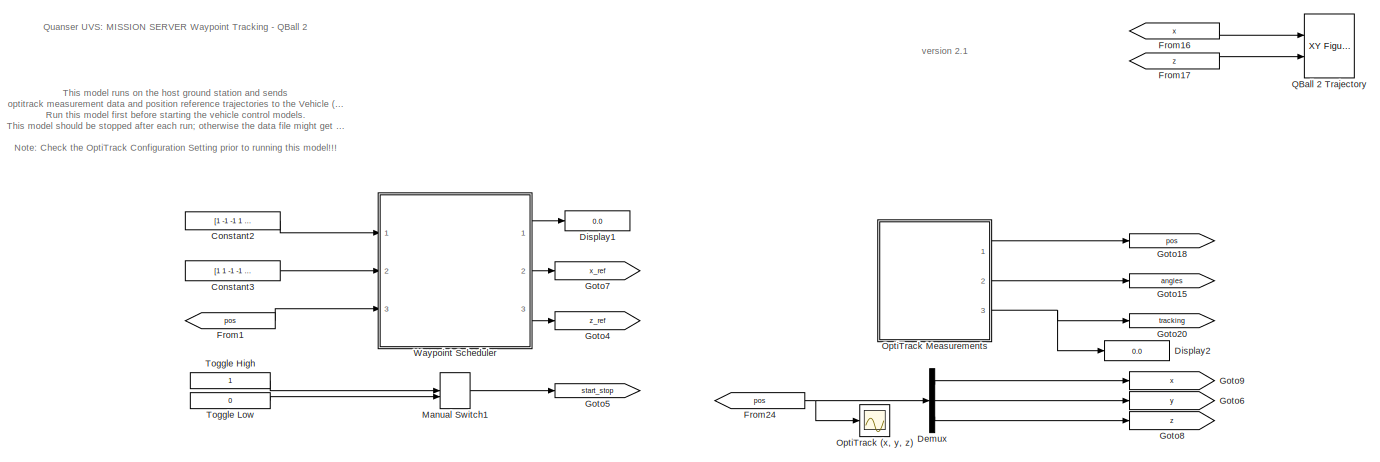
[diagram: root canvas - part 1/2, full width, top band]
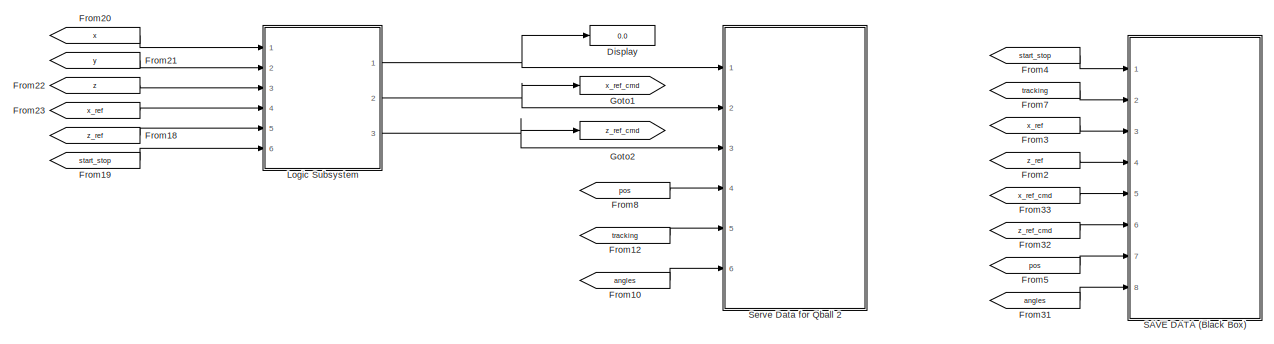
[diagram: root canvas - part 2/2, full width, bottom band]
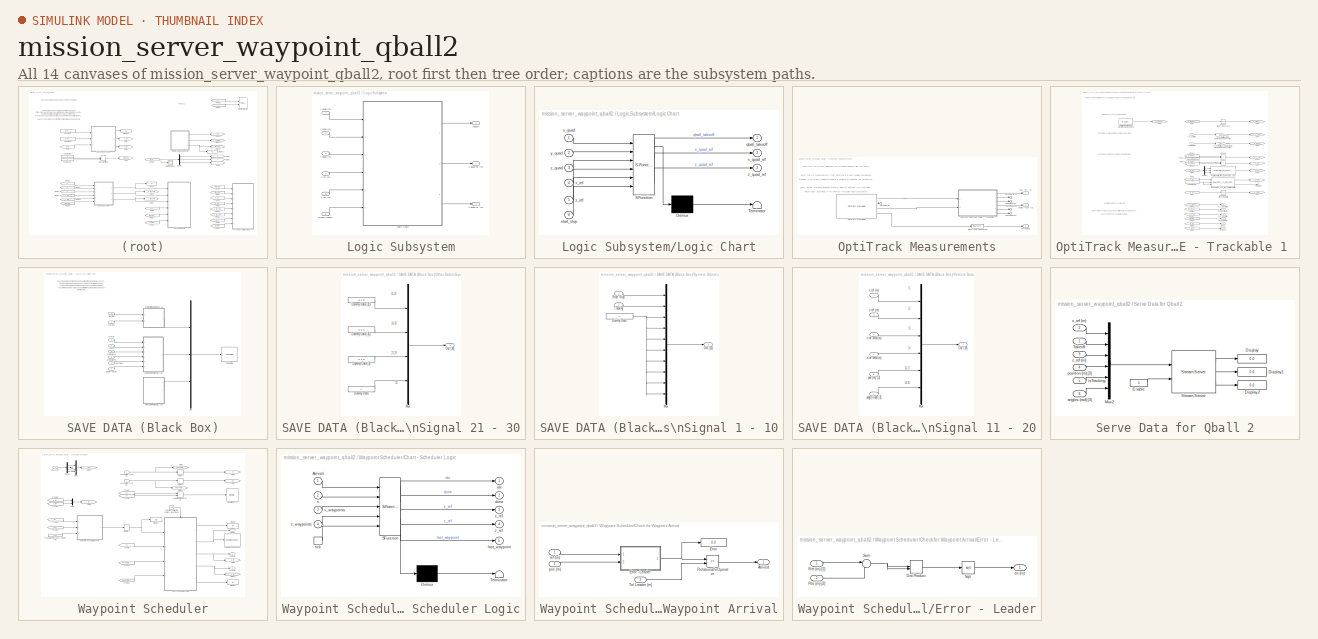
[diagram: thumbnail index - all 14 canvases of the model, root first then tree order]
MODEL mission_server_waypoint_qball2
KIND model
BLOCK [Constant] Constant2
  SID = 164
  Value = [1 -1 -1 1 0]*0.5
BLOCK [Constant] Constant3
  SID = 165
  Value = [1 1 -1 -1 0]*0.5
BLOCK [Demux] Demux
  DisplayOption = bar
  Outputs = 3
  Ports = [1, 3]
  SID = 210
BLOCK [Display] Display
  Decimation = 1
  Ports = [1]
  SID = 188
BLOCK [Display] Display1
  Decimation = 1
  Ports = [1]
  SID = 540
BLOCK [Display] Display2
  Decimation = 1
  Ports = [1]
  SID = 637
BLOCK [From] From1
  GotoTag = pos
  SID = 168
BLOCK [From] From10
  GotoTag = angles
  SID = 338
BLOCK [From] From12
  GotoTag = tracking
  SID = 151
BLOCK [From] From16
  GotoTag = x
  SID = 177
BLOCK [From] From17
  GotoTag = z
  SID = 178
BLOCK [From] From18
  GotoTag = z_ref
  SID = 122
BLOCK [From] From19
  GotoTag = start_stop
  SID = 129
BLOCK [From] From2
  GotoTag = z_ref
  SID = 569
BLOCK [From] From20
  GotoTag = x
  SID = 137
BLOCK [From] From21
  GotoTag = y
  SID = 138
BLOCK [From] From22
  GotoTag = z
  SID = 139
BLOCK [From] From23
  GotoTag = x_ref
  SID = 121
BLOCK [From] From24
  GotoTag = pos
  SID = 281
BLOCK [From] From3
  GotoTag = x_ref
  SID = 570
BLOCK [From] From31
  GotoTag = angles
  SID = 582
BLOCK [From] From32
  GotoTag = z_ref_cmd
  SID = 630
BLOCK [From] From33
  GotoTag = x_ref_cmd
  SID = 631
BLOCK [From] From4
  GotoTag = start_stop
  SID = 572
BLOCK [From] From5
  GotoTag = pos
  SID = 573
BLOCK [From] From7
  GotoTag = tracking
  SID = 575
BLOCK [From] From8
  GotoTag = pos
  SID = 337
BLOCK [Goto] Goto1
  GotoTag = x_ref_cmd
  SID = 622
BLOCK [Goto] Goto15
  GotoTag = angles
  SID = 275
BLOCK [Goto] Goto18
  GotoTag = pos
  SID = 278
BLOCK [Goto] Goto2
  GotoTag = z_ref_cmd
  SID = 623
BLOCK [Goto] Goto20
  GotoTag = tracking
  SID = 280
BLOCK [Goto] Goto4
  GotoTag = z_ref
  SID = 107
BLOCK [Goto] Goto5
  GotoTag = start_stop
  SID = 232
BLOCK [Goto] Goto6
  GotoTag = y
  SID = 217
BLOCK [Goto] Goto7
  GotoTag = x_ref
  SID = 106
BLOCK [Goto] Goto8
  GotoTag = z
  SID = 218
BLOCK [Goto] Goto9
  GotoTag = x
  SID = 219
BLOCK [SubSystem] Logic Subsystem
  Ports = [6, 3]
  RequestExecContextInheritance = off
  SID = 112
BLOCK [Inport] Logic Subsystem/Enable Toggle
  IconDisplay = Port number
  Port = 6
  SID = 247
BLOCK [SubSystem] Logic Subsystem/Logic Chart
  ErrorFcn = Stateflow.Translate.translate
  PermitHierarchicalResolution = ExplicitOnly
  Ports = [6, 3]
  RequestExecContextInheritance = off
  SFBlockType = Chart
  SID = 115
  TreatAsAtomicUnit = on
BLOCK [Demux] Logic Subsystem/Logic Chart/ Demux 
  Outputs = 1
  Ports = [1, 1]
  SID = 115::638
BLOCK [S-Function] Logic Subsystem/Logic Chart/ SFunction 
  EnableBusSupport = on
  FunctionName = sf_sfun
  PortCounts = [6 4]
  Ports = [6, 4]
  SID = 115::637
  Tag = Stateflow S-Function mission_server_waypoint_qball2 1
BLOCK [Terminator] Logic Subsystem/Logic Chart/ Terminator 
  SID = 115::639
BLOCK [Outport] Logic Subsystem/Logic Chart/qball_takeoff
  IconDisplay = Port number
  SID = 115::25
BLOCK [Inport] Logic Subsystem/Logic Chart/start_stop
  IconDisplay = Port number
  Port = 6
  SID = 115::38
BLOCK [Inport] Logic Subsystem/Logic Chart/x_quad
  IconDisplay = Port number
  SID = 115::26
BLOCK [Outport] Logic Subsystem/Logic Chart/x_quad_ref
  IconDisplay = Port number
  Port = 2
  SID = 115::33
BLOCK [Inport] Logic Subsystem/Logic Chart/x_ref
  IconDisplay = Port number
  Port = 4
  SID = 115::31
BLOCK [Inport] Logic Subsystem/Logic Chart/y_quad
  IconDisplay = Port number
  Port = 2
  SID = 115::27
BLOCK [Inport] Logic Subsystem/Logic Chart/z_quad
  IconDisplay = Port number
  Port = 3
  SID = 115::28
BLOCK [Outport] Logic Subsystem/Logic Chart/z_quad_ref
  IconDisplay = Port number
  Port = 3
  SID = 115::35
BLOCK [Inport] Logic Subsystem/Logic Chart/z_ref
  IconDisplay = Port number
  Port = 5
  SID = 115::32
BLOCK [Outport] Logic Subsystem/Takeoff
  IconDisplay = Port number
  SID = 250
BLOCK [Inport] Logic Subsystem/x quad (m)
  IconDisplay = Port number
  SID = 244
BLOCK [Outport] Logic Subsystem/x quad ref (m)
  IconDisplay = Port number
  Port = 2
  SID = 252
BLOCK [Inport] Logic Subsystem/x ref (m)
  IconDisplay = Port number
  Port = 4
  SID = 245
BLOCK [Inport] Logic Subsystem/y quad (m)
  IconDisplay = Port number
  Port = 2
  SID = 248
BLOCK [Inport] Logic Subsystem/z quad (m)
  IconDisplay = Port number
  Port = 3
  SID = 249
BLOCK [Outport] Logic Subsystem/z quad ref (m)
  IconDisplay = Port number
  Port = 3
  SID = 251
BLOCK [Inport] Logic Subsystem/z ref (m)
  IconDisplay = Port number
  Port = 5
  SID = 246
BLOCK [ManualSwitch] Manual Switch1
  CurrentSetting = 0
  SID = 233
BLOCK [Scope] OptiTrack (x, y, z)
  DataFormat = StructureWithTime
  Floating = off
  NumInputPorts = 1
  Ports = [1]
  SID = 37
  SampleTime = 0
  SaveName = ScopeData1
  ShowLegends = off
  YMax = 1.05
  YMin = -0.1
BLOCK [SubSystem] OptiTrack Measurements
  Ports = [0, 3]
  RequestExecContextInheritance = off
  SID = 38
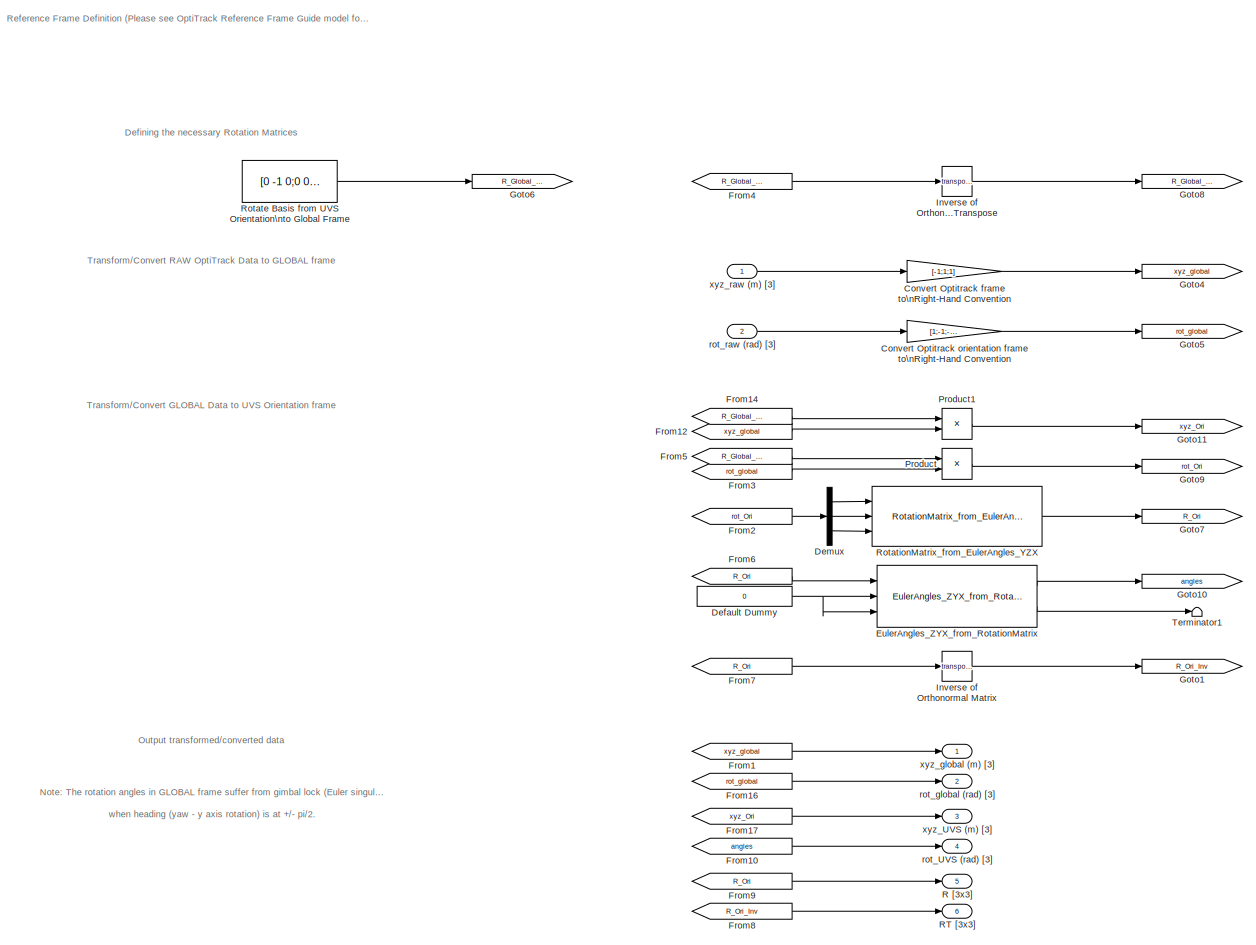
[diagram: OptiTrack Measurements/Compute OptiTrack POSE - Trackable 1  - part 1/1, most of the canvas]
BLOCK [SubSystem] OptiTrack Measurements/Compute OptiTrack POSE - Trackable 1 
  Ports = [2, 6]
  RequestExecContextInheritance = off
  SID = 358
BLOCK [Gain] OptiTrack Measurements/Compute OptiTrack POSE - Trackable 1 /Convert Optitrack frame to\nRight-Hand Convention
  Gain = [-1;1;1]
  OutDataTypeStr = Inherit: Inherit via internal rule
  ParamDataTypeStr = Inherit: Inherit via internal rule
  SID = 361
  SaturateOnIntegerOverflow = off
BLOCK [Gain] OptiTrack Measurements/Compute OptiTrack POSE - Trackable 1 /Convert Optitrack orientation frame to\nRight-Hand Convention
  Gain = [1;-1;-1]
  OutDataTypeStr = Inherit: Inherit via internal rule
  ParamDataTypeStr = Inherit: Inherit via internal rule
  SID = 362
  SaturateOnIntegerOverflow = off
BLOCK [Constant] OptiTrack Measurements/Compute OptiTrack POSE - Trackable 1 /Default Dummy
  SID = 363
  Value = 0
BLOCK [Demux] OptiTrack Measurements/Compute OptiTrack POSE - Trackable 1 /Demux
  DisplayOption = bar
  Outputs = 3
  Ports = [1, 3]
  SID = 364
BLOCK [Reference] OptiTrack Measurements/Compute OptiTrack POSE - Trackable 1 /EulerAngles_ZYX_from_RotationMatrix  REF=Orientation_Library/EulerAngles_ZYX_from_RotationMatrix
  Ports = [3, 2]
  SID = 365
  SourceBlock = Orientation_Library/EulerAngles_ZYX_from_RotationMatrix
  SourceType = SubSystem
BLOCK [From] OptiTrack Measurements/Compute OptiTrack POSE - Trackable 1 /From1
  GotoTag = xyz_global
  SID = 366
BLOCK [From] OptiTrack Measurements/Compute OptiTrack POSE - Trackable 1 /From10
  GotoTag = angles
  SID = 367
BLOCK [From] OptiTrack Measurements/Compute OptiTrack POSE - Trackable 1 /From12
  GotoTag = xyz_global
  SID = 368
BLOCK [From] OptiTrack Measurements/Compute OptiTrack POSE - Trackable 1 /From14
  GotoTag = R_Global_Ori_Inv
  SID = 369
BLOCK [From] OptiTrack Measurements/Compute OptiTrack POSE - Trackable 1 /From16
  GotoTag = rot_global
  SID = 370
BLOCK [From] OptiTrack Measurements/Compute OptiTrack POSE - Trackable 1 /From17
  GotoTag = xyz_Ori
  SID = 371
BLOCK [From] OptiTrack Measurements/Compute OptiTrack POSE - Trackable 1 /From2
  GotoTag = rot_Ori
  SID = 372
BLOCK [From] OptiTrack Measurements/Compute OptiTrack POSE - Trackable 1 /From3
  GotoTag = rot_global
  SID = 373
BLOCK [From] OptiTrack Measurements/Compute OptiTrack POSE - Trackable 1 /From4
  GotoTag = R_Global_Ori
  SID = 374
BLOCK [From] OptiTrack Measurements/Compute OptiTrack POSE - Trackable 1 /From5
  GotoTag = R_Global_Ori_Inv
  SID = 375
BLOCK [From] OptiTrack Measurements/Compute OptiTrack POSE - Trackable 1 /From6
  GotoTag = R_Ori
  SID = 376
BLOCK [From] OptiTrack Measurements/Compute OptiTrack POSE - Trackable 1 /From7
  GotoTag = R_Ori
  SID = 377
BLOCK [From] OptiTrack Measurements/Compute OptiTrack POSE - Trackable 1 /From8
  GotoTag = R_Ori_Inv
  SID = 378
BLOCK [From] OptiTrack Measurements/Compute OptiTrack POSE - Trackable 1 /From9
  GotoTag = R_Ori
  SID = 379
BLOCK [Goto] OptiTrack Measurements/Compute OptiTrack POSE - Trackable 1 /Goto1
  GotoTag = R_Ori_Inv
  SID = 380
BLOCK [Goto] OptiTrack Measurements/Compute OptiTrack POSE - Trackable 1 /Goto10
  GotoTag = angles
  SID = 381
BLOCK [Goto] OptiTrack Measurements/Compute OptiTrack POSE - Trackable 1 /Goto11
  GotoTag = xyz_Ori
  SID = 382
BLOCK [Goto] OptiTrack Measurements/Compute OptiTrack POSE - Trackable 1 /Goto4
  GotoTag = xyz_global
  SID = 383
BLOCK [Goto] OptiTrack Measurements/Compute OptiTrack POSE - Trackable 1 /Goto5
  GotoTag = rot_global
  SID = 384
BLOCK [Goto] OptiTrack Measurements/Compute OptiTrack POSE - Trackable 1 /Goto6
  GotoTag = R_Global_Ori
  SID = 385
BLOCK [Goto] OptiTrack Measurements/Compute OptiTrack POSE - Trackable 1 /Goto7
  GotoTag = R_Ori
  SID = 386
BLOCK [Goto] OptiTrack Measurements/Compute OptiTrack POSE - Trackable 1 /Goto8
  GotoTag = R_Global_Ori_Inv
  SID = 387
BLOCK [Goto] OptiTrack Measurements/Compute OptiTrack POSE - Trackable 1 /Goto9
  GotoTag = rot_Ori
  SID = 388
BLOCK [Math] OptiTrack Measurements/Compute OptiTrack POSE - Trackable 1 /Inverse of Orthonormal Matrix
  Operator = transpose
  Ports = [1, 1]
  SID = 389
BLOCK [Math] OptiTrack Measurements/Compute OptiTrack POSE - Trackable 1 /Inverse of Orthonormal Matrix\nis its Transpose
  Operator = transpose
  Ports = [1, 1]
  SID = 390
BLOCK [Product] OptiTrack Measurements/Compute OptiTrack POSE - Trackable 1 /Product
  InputSameDT = off
  Multiplication = Matrix(*)
  OutDataTypeStr = Inherit: Inherit via internal rule
  Ports = [2, 1]
  RndMeth = Floor
  SID = 391
  SaturateOnIntegerOverflow = off
BLOCK [Product] OptiTrack Measurements/Compute OptiTrack POSE - Trackable 1 /Product1
  InputSameDT = off
  Multiplication = Matrix(*)
  OutDataTypeStr = Inherit: Inherit via internal rule
  Ports = [2, 1]
  RndMeth = Floor
  SID = 392
  SaturateOnIntegerOverflow = off
BLOCK [Outport] OptiTrack Measurements/Compute OptiTrack POSE - Trackable 1 /R [3x3]
  IconDisplay = Port number
  Port = 5
  SID = 400
BLOCK [Outport] OptiTrack Measurements/Compute OptiTrack POSE - Trackable 1 /RT [3x3]
  IconDisplay = Port number
  Port = 6
  SID = 401
BLOCK [Constant] OptiTrack Measurements/Compute OptiTrack POSE - Trackable 1 /Rotate Basis from UVS Orientation\nto Global Frame
  SID = 393
  Value = [0 -1 0;0 0 1;-1 0 0]
BLOCK [Reference] OptiTrack Measurements/Compute OptiTrack POSE - Trackable 1 /RotationMatrix_from_EulerAngles_YZX  REF=Orientation_Library/RotationMatrix_from_EulerAngles_YZX
  Ports = [3, 1]
  SID = 394
  SourceBlock = Orientation_Library/RotationMatrix_from_EulerAngles_YZX
  SourceType = SubSystem
BLOCK [Terminator] OptiTrack Measurements/Compute OptiTrack POSE - Trackable 1 /Terminator1
  SID = 395
BLOCK [Outport] OptiTrack Measurements/Compute OptiTrack POSE - Trackable 1 /rot_UVS (rad) [3]
  IconDisplay = Port number
  Port = 4
  SID = 399
BLOCK [Outport] OptiTrack Measurements/Compute OptiTrack POSE - Trackable 1 /rot_global (rad) [3]
  IconDisplay = Port number
  Port = 2
  SID = 397
BLOCK [Inport] OptiTrack Measurements/Compute OptiTrack POSE - Trackable 1 /rot_raw (rad) [3]
  IconDisplay = Port number
  Port = 2
  SID = 360
BLOCK [Outport] OptiTrack Measurements/Compute OptiTrack POSE - Trackable 1 /xyz_UVS (m) [3]
  IconDisplay = Port number
  Port = 3
  SID = 398
BLOCK [Outport] OptiTrack Measurements/Compute OptiTrack POSE - Trackable 1 /xyz_global (m) [3]
  IconDisplay = Port number
  SID = 396
BLOCK [Inport] OptiTrack Measurements/Compute OptiTrack POSE - Trackable 1 /xyz_raw (m) [3]
  IconDisplay = Port number
  SID = 359
BLOCK [DataTypeConversion] OptiTrack Measurements/Data Type Conversion
  RndMeth = Floor
  SID = 209
  SaturateOnIntegerOverflow = off
BLOCK [Reference] OptiTrack Measurements/OptiTrack Trackables  REF=quarc_library/Devices/Third-Party/NaturalPoint/OptiTrack/OptiTrack Trackables
  Ports = [0, 4]
  SID = 226
  SourceBlock = quarc_library/Devices/Third-Party/NaturalPoint/OptiTrack/OptiTrack Trackables
  SourceType = OptiTrack Rigid Body Position
  calibration_file = <userpath><path> mm) 2017-05-16 6.48pm.cal
  rigid_body_file = <userpath><path>
  rigid_body_ids = [1]
  sample_time = qc_get_step_size
BLOCK [Terminator] OptiTrack Measurements/Terminator
  SID = 227
BLOCK [Terminator] OptiTrack Measurements/Terminator1
  SID = 266
BLOCK [Terminator] OptiTrack Measurements/Terminator12
  SID = 267
BLOCK [Terminator] OptiTrack Measurements/Terminator2
  SID = 458
BLOCK [Terminator] OptiTrack Measurements/Terminator3
  SID = 459
BLOCK [Outport] OptiTrack Measurements/angles (rad) [3]
  IconDisplay = Port number
  Port = 2
  SID = 268
BLOCK [Outport] OptiTrack Measurements/isTracking
  IconDisplay = Port number
  Port = 3
  SID = 273
BLOCK [Outport] OptiTrack Measurements/pos (m) [3]
  IconDisplay = Port number
  SID = 255
BLOCK [Reference] QBall 2 Trajectory  REF=quarc_library/Sinks/Figures/XY Figure
  Ports = [2]
  SID = 179
  SourceBlock = quarc_library/Sinks/Figures/XY Figure
  SourceType = XY Figure
  axes_tag = axes1
  buffer_size = 1000
  figure_mode = Use figure window
  figure_tag = figure1
  initial_position = 601   63  713  540
  initial_visibility = off
  maximum_x = 1
  maximum_y = 1
  minimum_x = -1
  minimum_y = -1
  sample_time = -1
  trace_mode = Do not erase old trace
  update_rate = 100
BLOCK [SubSystem] SAVE DATA (Black Box)
  Ports = [8]
  RequestExecContextInheritance = off
  SID = 562
BLOCK [Mux] SAVE DATA (Black Box)/Mux
  DisplayOption = bar
  Inputs = 3
  Ports = [3, 1]
  SID = 566
BLOCK [SubSystem] SAVE DATA (Black Box)/Other Data\nSignal 21 - 30
  Ports = [0, 1]
  RequestExecContextInheritance = off
  SID = 605
BLOCK [Constant] SAVE DATA (Black Box)/Other Data\nSignal 21 - 30/Dummy Data
  SID = 610
  Value = 0
BLOCK [Constant] SAVE DATA (Black Box)/Other Data\nSignal 21 - 30/Dummy Data [3]
  SID = 620
  Value = [0 0 0]
BLOCK [Constant] SAVE DATA (Black Box)/Other Data\nSignal 21 - 30/Dummy Data [3]1
  SID = 634
  Value = [0 0 0]
BLOCK [Constant] SAVE DATA (Black Box)/Other Data\nSignal 21 - 30/Dummy Data [3]2
  SID = 635
  Value = [0 0 0]
BLOCK [Mux] SAVE DATA (Black Box)/Other Data\nSignal 21 - 30/Mux
  DisplayOption = bar
  Inputs = [3 3 3 1]
  Ports = [4, 1]
  SID = 611
BLOCK [Outport] SAVE DATA (Black Box)/Other Data\nSignal 21 - 30/Out [10]
  IconDisplay = Port number
  SID = 612
BLOCK [Inport] SAVE DATA (Black Box)/Start Stop
  IconDisplay = Port number
  SID = 563
BLOCK [SubSystem] SAVE DATA (Black Box)/System Status\nSignal 1 - 10
  Ports = [2, 1]
  RequestExecContextInheritance = off
  SID = 583
BLOCK [Constant] SAVE DATA (Black Box)/System Status\nSignal 1 - 10/Dummy Data
  SID = 589
  Value = 0
BLOCK [Mux] SAVE DATA (Black Box)/System Status\nSignal 1 - 10/Mux
  DisplayOption = bar
  Inputs = 10
  Ports = [10, 1]
  SID = 588
BLOCK [Outport] SAVE DATA (Black Box)/System Status\nSignal 1 - 10/Out [10]
  IconDisplay = Port number
  SID = 585
BLOCK [Inport] SAVE DATA (Black Box)/System Status\nSignal 1 - 10/Start Stop
  IconDisplay = Port number
  SID = 584
BLOCK [Inport] SAVE DATA (Black Box)/System Status\nSignal 1 - 10/Tracking
  IconDisplay = Port number
  Port = 2
  SID = 586
BLOCK [Reference] SAVE DATA (Black Box)/To Host File  REF=quarc_library/Sinks/To Host/To Host File
  AttributesFormatString = %<final_file_name>
  Ports = [1]
  SID = 567
  SourceBlock = quarc_library/Sinks/To Host/To Host File
  SourceType = To Host File
  append = off
  decimation = 1
  file_format = MAT-file v.4
  file_name = mission_data_%{date}_%{time}.mat
  final_file_name = mission_data_26-May-2017_19-37-20.mat
  options = No header or footer
  sample_time = -1
  variable_name = mission_data
BLOCK [SubSystem] SAVE DATA (Black Box)/Vehicle Data\nSignal 11 - 20
  Ports = [6, 1]
  RequestExecContextInheritance = off
  SID = 590
BLOCK [Mux] SAVE DATA (Black Box)/Vehicle Data\nSignal 11 - 20/Mux
  DisplayOption = bar
  Inputs = [1 1 1 1 3 3]
  Ports = [6, 1]
  SID = 595
BLOCK [Outport] SAVE DATA (Black Box)/Vehicle Data\nSignal 11 - 20/Out [10]
  IconDisplay = Port number
  SID = 596
BLOCK [Inport] SAVE DATA (Black Box)/Vehicle Data\nSignal 11 - 20/angle (rad) [3]
  IconDisplay = Port number
  Port = 6
  SID = 597
BLOCK [Inport] SAVE DATA (Black Box)/Vehicle Data\nSignal 11 - 20/pos (m) [3]
  IconDisplay = Port number
  Port = 5
  SID = 593
BLOCK [Inport] SAVE DATA (Black Box)/Vehicle Data\nSignal 11 - 20/x ref (m)
  IconDisplay = Port number
  SID = 591
BLOCK [Inport] SAVE DATA (Black Box)/Vehicle Data\nSignal 11 - 20/x ref cmd (m)
  IconDisplay = Port number
  Port = 3
  SID = 624
BLOCK [Inport] SAVE DATA (Black Box)/Vehicle Data\nSignal 11 - 20/z ref (m)
  IconDisplay = Port number
  Port = 2
  SID = 592
BLOCK [Inport] SAVE DATA (Black Box)/Vehicle Data\nSignal 11 - 20/z ref cmd (m)
  IconDisplay = Port number
  Port = 4
  SID = 625
BLOCK [Inport] SAVE DATA (Black Box)/angle (rad) [3]
  IconDisplay = Port number
  Port = 8
  SID = 604
BLOCK [Inport] SAVE DATA (Black Box)/pos (m) [3]
  IconDisplay = Port number
  Port = 7
  SID = 578
BLOCK [Inport] SAVE DATA (Black Box)/tracking
  IconDisplay = Port number
  Port = 2
  SID = 577
BLOCK [Inport] SAVE DATA (Black Box)/x ref (m)
  IconDisplay = Port number
  Port = 3
  SID = 568
BLOCK [Inport] SAVE DATA (Black Box)/x ref cmd (m)
  IconDisplay = Port number
  Port = 5
  SID = 628
BLOCK [Inport] SAVE DATA (Black Box)/z ref (m)
  IconDisplay = Port number
  Port = 4
  SID = 571
BLOCK [Inport] SAVE DATA (Black Box)/z ref cmd (m)
  IconDisplay = Port number
  Port = 6
  SID = 629
BLOCK [SubSystem] Serve Data for Qball 2
  Ports = [6]
  RequestExecContextInheritance = off
  SID = 345
BLOCK [Display] Serve Data for Qball 2/Display
  Decimation = 100
  Ports = [1]
  SID = 352
BLOCK [Display] Serve Data for Qball 2/Display1
  Decimation = 100
  Ports = [1]
  SID = 353
BLOCK [Display] Serve Data for Qball 2/Display2
  Decimation = 100
  Ports = [1]
  SID = 354
BLOCK [Constant] Serve Data for Qball 2/Enable
  SID = 355
BLOCK [Mux] Serve Data for Qball 2/Mux2
  DisplayOption = bar
  Inputs = [1 1 1 3 1 3]
  Ports = [6, 1]
  SID = 356
BLOCK [Reference] Serve Data for Qball 2/Stream Server  REF=quarc_library/Communications/Basic/Stream Server
  AttributesFormatString = \"tcpip://localhost:18006\"
  Ports = [2, 3]
  SID = 357
  SourceBlock = quarc_library/Communications/Basic/Stream Server
  SourceType = Stream Server
  active = off
  apply_uri_to_all_configs = on
  byte_order = little endian (Intel - LSB first)
  data_type = Inherited via back propagation
  default_value = [0]
  implementation = Use non-blocking I/O
  max_dimensions = -1
  optimization = Minimum latency
  receive_buffer_size = 1460
  receive_dimensions = off
  receive_fifo_size = 1000
  receive_options = Do not receive data
  receive_priority = 0
  sample_time = qc_get_step_size
  send_buffer_size = 1460
  send_dimensions = off
  send_fifo_size = 1000
  send_options = Send most recent data
  send_priority = 0
  type_expr = BusObject
  uri = tcpip://localhost:18006
  uri_source = Specify via dialog (do not evaluate)
BLOCK [Inport] Serve Data for Qball 2/Takeoff
  IconDisplay = Port number
  SID = 347
BLOCK [Inport] Serve Data for Qball 2/angles (rad) [3]
  IconDisplay = Port number
  Port = 6
  SID = 351
BLOCK [Inport] Serve Data for Qball 2/isTracking
  IconDisplay = Port number
  Port = 5
  SID = 350
BLOCK [Inport] Serve Data for Qball 2/position (m) [3]
  IconDisplay = Port number
  Port = 4
  SID = 349
BLOCK [Inport] Serve Data for Qball 2/x_ref (m)
  IconDisplay = Port number
  Port = 2
  SID = 346
BLOCK [Inport] Serve Data for Qball 2/z_ref (m)
  IconDisplay = Port number
  Port = 3
  SID = 348
BLOCK [Constant] Toggle High
  SID = 234
BLOCK [Constant] Toggle Low
  SID = 235
  Value = 0
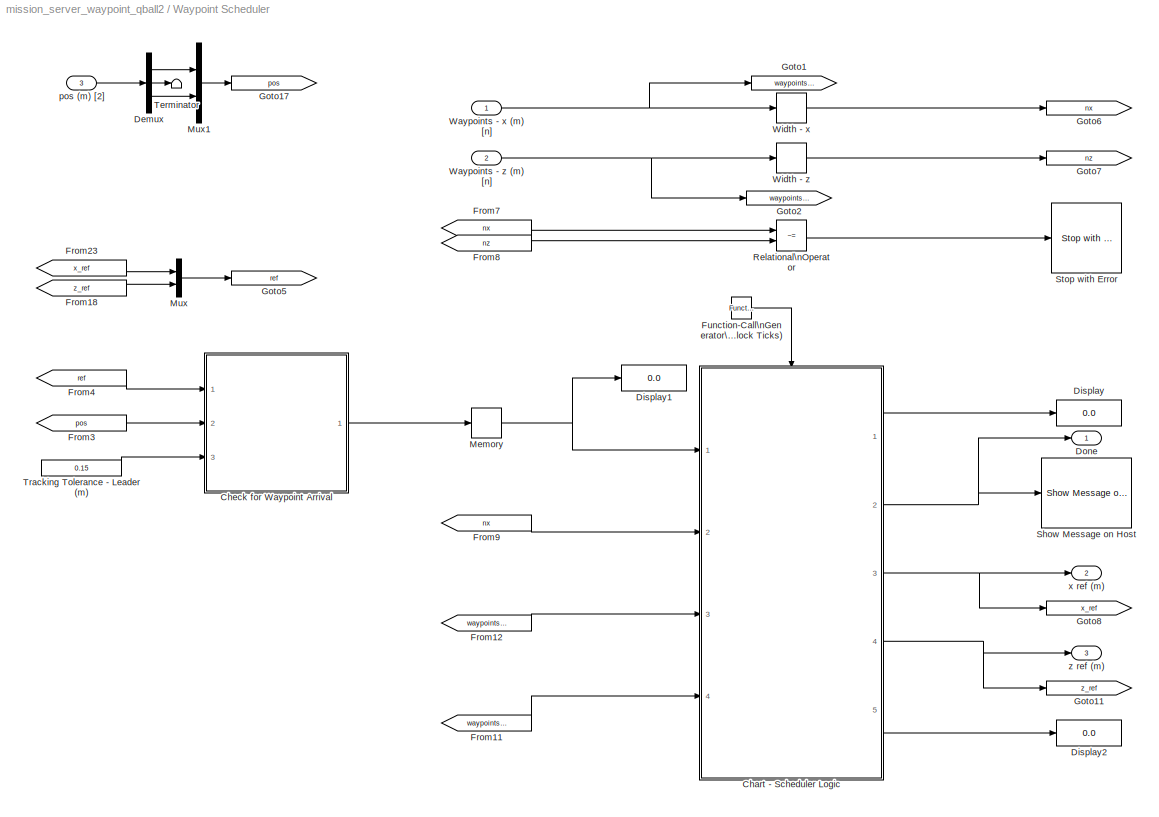
BLOCK [SubSystem] Waypoint Scheduler
  Ports = [3, 3]
  RequestExecContextInheritance = off
  SID = 464
BLOCK [SubSystem] Waypoint Scheduler/Chart - Scheduler Logic
  ErrorFcn = Stateflow.Translate.translate
  PermitHierarchicalResolution = ExplicitOnly
  Ports = [4, 5, 0, 1]
  RequestExecContextInheritance = off
  SFBlockType = Chart
  SID = 470
  TreatAsAtomicUnit = on
BLOCK [Demux] Waypoint Scheduler/Chart - Scheduler Logic/ Demux 
  Outputs = 1
  Ports = [1, 1]
  SID = 470::638
BLOCK [S-Function] Waypoint Scheduler/Chart - Scheduler Logic/ SFunction 
  EnableBusSupport = on
  FunctionName = sf_sfun
  PortCounts = [5 6]
  Ports = [5, 6]
  SID = 470::637
  Tag = Stateflow S-Function mission_server_waypoint_qball2 3
BLOCK [Terminator] Waypoint Scheduler/Chart - Scheduler Logic/ Terminator 
  SID = 470::639
BLOCK [Inport] Waypoint Scheduler/Chart - Scheduler Logic/Arrived
  IconDisplay = Port number
  SID = 470::71
BLOCK [Outport] Waypoint Scheduler/Chart - Scheduler Logic/done
  IconDisplay = Port number
  Port = 2
  SID = 470::68
BLOCK [Outport] Waypoint Scheduler/Chart - Scheduler Logic/idx
  IconDisplay = Port number
  SID = 470::67
BLOCK [Outport] Waypoint Scheduler/Chart - Scheduler Logic/last_waypoint
  IconDisplay = Port number
  Port = 5
  SID = 470::75
BLOCK [Inport] Waypoint Scheduler/Chart - Scheduler Logic/n
  IconDisplay = Port number
  Port = 2
  SID = 470::72
BLOCK [TriggerPort] Waypoint Scheduler/Chart - Scheduler Logic/tick
  Ports = [0, 1]
  SID = 470::66
  ShowOutputPort = on
  StatesWhenEnabling = held
  TriggerType = function-call
BLOCK [Outport] Waypoint Scheduler/Chart - Scheduler Logic/x_ref
  IconDisplay = Port number
  Port = 3
  SID = 470::69
BLOCK [Inport] Waypoint Scheduler/Chart - Scheduler Logic/x_waypoints
  IconDisplay = Port number
  Port = 3
  SID = 470::73
BLOCK [Outport] Waypoint Scheduler/Chart - Scheduler Logic/z_ref
  IconDisplay = Port number
  Port = 4
  SID = 470::70
BLOCK [Inport] Waypoint Scheduler/Chart - Scheduler Logic/z_waypoints
  IconDisplay = Port number
  Port = 4
  SID = 470::74
BLOCK [SubSystem] Waypoint Scheduler/Check for Waypoint Arrival
  Ports = [3, 1]
  RequestExecContextInheritance = off
  SID = 471
BLOCK [Outport] Waypoint Scheduler/Check for Waypoint Arrival/Arrived
  IconDisplay = Port number
  SID = 500
BLOCK [Display] Waypoint Scheduler/Check for Waypoint Arrival/Error
  Decimation = 1
  Ports = [1]
  SID = 485
BLOCK [SubSystem] Waypoint Scheduler/Check for Waypoint Arrival/Error - Leader
  Ports = [2, 1]
  RequestExecContextInheritance = off
  SID = 486
BLOCK [DotProduct] Waypoint Scheduler/Check for Waypoint Arrival/Error - Leader/Dot Product
  OutDataTypeStr = Inherit: Inherit via internal rule
  SID = 489
BLOCK [Inport] Waypoint Scheduler/Check for Waypoint Arrival/Error - Leader/Pos (m) [2]
  IconDisplay = Port number
  Port = 2
  SID = 488
BLOCK [Inport] Waypoint Scheduler/Check for Waypoint Arrival/Error - Leader/Ref (m) [2]
  IconDisplay = Port number
  SID = 487
BLOCK [Sqrt] Waypoint Scheduler/Check for Waypoint Arrival/Error - Leader/Sqrt
  SID = 490
BLOCK [Sum] Waypoint Scheduler/Check for Waypoint Arrival/Error - Leader/Sum
  IconShape = round
  InputSameDT = off
  Inputs = |+-
  OutDataTypeStr = Inherit: Inherit via internal rule
  Ports = [2, 1]
  SID = 491
  SaturateOnIntegerOverflow = off
BLOCK [Outport] Waypoint Scheduler/Check for Waypoint Arrival/Error - Leader/err (m)
  IconDisplay = Port number
  SID = 492
BLOCK [RelationalOperator] Waypoint Scheduler/Check for Waypoint Arrival/Relational\nOperator
  InputSameDT = off
  Operator = <=
  OutDataTypeStr = boolean
  Ports = [2, 1]
  SID = 495
BLOCK [Inport] Waypoint Scheduler/Check for Waypoint Arrival/Tol Leader (m)
  IconDisplay = Port number
  Port = 3
  SID = 476
BLOCK [Inport] Waypoint Scheduler/Check for Waypoint Arrival/pos (m)
  IconDisplay = Port number
  Port = 2
  SID = 473
BLOCK [Inport] Waypoint Scheduler/Check for Waypoint Arrival/ref (m)
  IconDisplay = Port number
  SID = 472
BLOCK [Demux] Waypoint Scheduler/Demux
  DisplayOption = bar
  Outputs = 3
  Ports = [1, 3]
  SID = 543
BLOCK [Display] Waypoint Scheduler/Display
  Decimation = 100
  Ports = [1]
  SID = 501
BLOCK [Display] Waypoint Scheduler/Display1
  Decimation = 100
  Ports = [1]
  SID = 502
BLOCK [Display] Waypoint Scheduler/Display2
  Decimation = 100
  Ports = [1]
  SID = 633
BLOCK [Outport] Waypoint Scheduler/Done
  IconDisplay = Port number
  SID = 537
BLOCK [From] Waypoint Scheduler/From11
  GotoTag = waypoints_z
  SID = 505
BLOCK [From] Waypoint Scheduler/From12
  GotoTag = waypoints_x
  SID = 506
BLOCK [From] Waypoint Scheduler/From18
  GotoTag = z_ref
  SID = 507
BLOCK [From] Waypoint Scheduler/From23
  GotoTag = x_ref
  SID = 509
BLOCK [From] Waypoint Scheduler/From3
  GotoTag = pos
  SID = 510
BLOCK [From] Waypoint Scheduler/From4
  GotoTag = ref
  SID = 511
BLOCK [From] Waypoint Scheduler/From7
  GotoTag = nx
  SID = 514
BLOCK [From] Waypoint Scheduler/From8
  GotoTag = nz
  SID = 515
BLOCK [From] Waypoint Scheduler/From9
  GotoTag = nx
  SID = 516
BLOCK [Reference] Waypoint Scheduler/Function-Call\nGenerator\n(Clock Ticks)  REF=simulink/Ports &\nSubsystems/Function-Call\nGenerator
  Ports = [0, 1]
  SID = 517
  SourceBlock = simulink/Ports &\nSubsystems/Function-Call\nGenerator
  SourceType = Function-Call Generator
  numberOfIterations = 1
  sample_time = qc_get_step_size
BLOCK [Goto] Waypoint Scheduler/Goto1
  GotoTag = waypoints_x
  SID = 518
BLOCK [Goto] Waypoint Scheduler/Goto11
  GotoTag = z_ref
  SID = 519
BLOCK [Goto] Waypoint Scheduler/Goto17
  GotoTag = pos
  SID = 520
BLOCK [Goto] Waypoint Scheduler/Goto2
  GotoTag = waypoints_z
  SID = 522
BLOCK [Goto] Waypoint Scheduler/Goto5
  GotoTag = ref
  SID = 525
BLOCK [Goto] Waypoint Scheduler/Goto6
  GotoTag = nx
  SID = 526
BLOCK [Goto] Waypoint Scheduler/Goto7
  GotoTag = nz
  SID = 527
BLOCK [Goto] Waypoint Scheduler/Goto8
  GotoTag = x_ref
  SID = 528
BLOCK [Memory] Waypoint Scheduler/Memory
  SID = 529
BLOCK [Mux] Waypoint Scheduler/Mux
  DisplayOption = bar
  Inputs = 2
  Ports = [2, 1]
  SID = 530
BLOCK [Mux] Waypoint Scheduler/Mux1
  DisplayOption = bar
  Inputs = 2
  Ports = [2, 1]
  SID = 542
BLOCK [RelationalOperator] Waypoint Scheduler/Relational\nOperator
  InputSameDT = off
  Operator = ~=
  OutDataTypeStr = boolean
  Ports = [2, 1]
  SID = 531
BLOCK [Reference] Waypoint Scheduler/Show Message on Host  REF=quarc_library/Sinks/Error Handling/Show Message on Host
  AttributesFormatString = \"%<message>\"
  Ports = [1]
  SID = 532
  SourceBlock = quarc_library/Sinks/Error Handling/Show Message on Host
  SourceType = Host Show Message
  message = Vehicles at final waypoint. Please land QBall and then stop all models.
  message_icon = Information
  message_type = Fixed error message
BLOCK [Reference] Waypoint Scheduler/Stop with Error  REF=quarc_library/Sinks/Error Handling/Stop with Error
  AttributesFormatString = \"%<message>\"
  Ports = [1]
  SID = 533
  SourceBlock = quarc_library/Sinks/Error Handling/Stop with Error
  SourceType = Stop with Error
  message = Error: Number of x and z waypoints not equal!
  message_type = Fixed error message
BLOCK [Terminator] Waypoint Scheduler/Terminator
  SID = 544
BLOCK [Constant] Waypoint Scheduler/Tracking Tolerance - Leader (m)
  SID = 549
  Value = 0.15
BLOCK [Inport] Waypoint Scheduler/Waypoints - x (m) [n]
  IconDisplay = Port number
  SID = 465
BLOCK [Inport] Waypoint Scheduler/Waypoints - z (m) [n]
  IconDisplay = Port number
  Port = 2
  SID = 466
BLOCK [Width] Waypoint Scheduler/Width - x
  SID = 535
BLOCK [Width] Waypoint Scheduler/Width - z
  SID = 536
BLOCK [Inport] Waypoint Scheduler/pos (m) [2]
  IconDisplay = Port number
  Port = 3
  SID = 467
BLOCK [Outport] Waypoint Scheduler/x ref (m)
  IconDisplay = Port number
  Port = 2
  SID = 538
BLOCK [Outport] Waypoint Scheduler/z ref (m)
  IconDisplay = Port number
  Port = 3
  SID = 539
ANNOTATION (root): Note: Check the OptiTrack Configuration Setting prior to running this model!!!
ANNOTATION (root): Quanser UVS: MISSION SERVER Waypoint Tracking - QBall 2
ANNOTATION (root): This model runs on the host ground station and sends\noptitrack measurement data and position reference trajectories to the Vehicle (QBall 2) model.\nRun this model first before starting the vehicle control models.\nThis model should be stopped after each run; otherwise the data file might get too large.
ANNOTATION (root): version 2.1
ANNOTATION OptiTrack Measurements: \n \n Note: Default Trackable Definition assumes QBall 2 is rigid body ID #1 and QBot 2 is rigid body ID #2. \n Please adjust accordingly in the OptiTrack Trackables block parameters.
ANNOTATION OptiTrack Measurements: Make sure the correct Calibration and Trackable Definition Files are used!!!
ANNOTATION OptiTrack Measurements: Note: The xyz measurements from OptiTrack is in LEFT HANDED Coordinates.\n\nMapping to the RIGHT HANDED coordinate is achieved by negating the direction on the x-axis measurements.
ANNOTATION OptiTrack Measurements/Compute OptiTrack POSE - Trackable 1 : \n \n Reference Frame Definition (Please see OptiTrack Reference Frame Guide model for details): \n \n RAW: OptiTrack Native Frame (LEFT-HANDED), Y along vertical direction \n GLOBAL: Derived from RAW, corrected to RIGHT-HANDED by negating X of RAW \n UVS Orientation: Z along vertical direction, X-Y form horizontal (ground) plane
ANNOTATION OptiTrack Measurements/Compute OptiTrack POSE - Trackable 1 : \n \n Note: The rotation angles in GLOBAL frame suffer from gimbal lock (Euler singularity) \n when heading (yaw - y axis rotation) is at +/- pi/2. \n It is recommended to use the rotation angles in UVS Orientation frame for flight control.
ANNOTATION OptiTrack Measurements/Compute OptiTrack POSE - Trackable 1 : Defining the necessary Rotation Matrices
ANNOTATION OptiTrack Measurements/Compute OptiTrack POSE - Trackable 1 : Output transformed/converted data
ANNOTATION OptiTrack Measurements/Compute OptiTrack POSE - Trackable 1 : Transform/Convert GLOBAL Data to UVS Orientation frame
ANNOTATION OptiTrack Measurements/Compute OptiTrack POSE - Trackable 1 : Transform/Convert RAW OptiTrack Data to GLOBAL frame
ANNOTATION SAVE DATA (Black Box): Saves the data to a MAT file on the host PC. Note that the model must be connected\nin external mode and stopped correctly for the MAT file to be saved.\nAppend signals to the end of the mux block to save additional signals.\nEach time the model is run it saves a new file with the date and time appended \nto the file name.\n\nSignals can be read after stopping the model by first loading the MAT fi...<+278ch>
ANNOTATION SAVE DATA (Black Box)/Other Data\nSignal 21 - 30: 21-23
ANNOTATION SAVE DATA (Black Box)/Other Data\nSignal 21 - 30: 24-26
ANNOTATION SAVE DATA (Black Box)/Other Data\nSignal 21 - 30: 27-29
ANNOTATION SAVE DATA (Black Box)/Other Data\nSignal 21 - 30: 30
ANNOTATION SAVE DATA (Black Box)/Vehicle Data\nSignal 11 - 20: 11
ANNOTATION SAVE DATA (Black Box)/Vehicle Data\nSignal 11 - 20: 12
ANNOTATION SAVE DATA (Black Box)/Vehicle Data\nSignal 11 - 20: 13
ANNOTATION SAVE DATA (Black Box)/Vehicle Data\nSignal 11 - 20: 14
ANNOTATION SAVE DATA (Black Box)/Vehicle Data\nSignal 11 - 20: 15-17
ANNOTATION SAVE DATA (Black Box)/Vehicle Data\nSignal 11 - 20: 18-20
LINE Constant2:1 -> Waypoint Scheduler:1
LINE Constant3:1 -> Waypoint Scheduler:2
LINE Demux:1 -> Goto9:1
LINE Demux:2 -> Goto6:1
LINE Demux:3 -> Goto8:1
LINE From10:1 -> Serve Data for Qball 2:6
LINE From12:1 -> Serve Data for Qball 2:5
LINE From16:1 -> QBall 2 Trajectory:1
LINE From17:1 -> QBall 2 Trajectory:2
LINE From18:1 -> Logic Subsystem:5
LINE From19:1 -> Logic Subsystem:6
LINE From1:1 -> Waypoint Scheduler:3
LINE From20:1 -> Logic Subsystem:1
LINE From21:1 -> Logic Subsystem:2
LINE From22:1 -> Logic Subsystem:3
LINE From23:1 -> Logic Subsystem:4
NET From24:1 -> Demux:1, OptiTrack (x, y, z):1
LINE From2:1 -> SAVE DATA (Black Box):4
LINE From31:1 -> SAVE DATA (Black Box):8
LINE From32:1 -> SAVE DATA (Black Box):6
LINE From33:1 -> SAVE DATA (Black Box):5
LINE From3:1 -> SAVE DATA (Black Box):3
LINE From4:1 -> SAVE DATA (Black Box):1
LINE From5:1 -> SAVE DATA (Black Box):7
LINE From7:1 -> SAVE DATA (Black Box):2
LINE From8:1 -> Serve Data for Qball 2:4
LINE Logic Subsystem/Enable Toggle:1 -> Logic Subsystem/Logic Chart:6
LINE Logic Subsystem/Logic Chart/ Demux :1 -> Logic Subsystem/Logic Chart/ Terminator :1
LINE Logic Subsystem/Logic Chart/ SFunction :1 -> Logic Subsystem/Logic Chart/ Demux :1
LINE Logic Subsystem/Logic Chart/ SFunction :2 -> Logic Subsystem/Logic Chart/qball_takeoff:1
LINE Logic Subsystem/Logic Chart/ SFunction :3 -> Logic Subsystem/Logic Chart/x_quad_ref:1
LINE Logic Subsystem/Logic Chart/ SFunction :4 -> Logic Subsystem/Logic Chart/z_quad_ref:1
LINE Logic Subsystem/Logic Chart/start_stop:1 -> Logic Subsystem/Logic Chart/ SFunction :6
LINE Logic Subsystem/Logic Chart/x_quad:1 -> Logic Subsystem/Logic Chart/ SFunction :1
LINE Logic Subsystem/Logic Chart/x_ref:1 -> Logic Subsystem/Logic Chart/ SFunction :4
LINE Logic Subsystem/Logic Chart/y_quad:1 -> Logic Subsystem/Logic Chart/ SFunction :2
LINE Logic Subsystem/Logic Chart/z_quad:1 -> Logic Subsystem/Logic Chart/ SFunction :3
LINE Logic Subsystem/Logic Chart/z_ref:1 -> Logic Subsystem/Logic Chart/ SFunction :5
LINE Logic Subsystem/Logic Chart:1 -> Logic Subsystem/Takeoff:1
LINE Logic Subsystem/Logic Chart:2 -> Logic Subsystem/x quad ref (m):1
LINE Logic Subsystem/Logic Chart:3 -> Logic Subsystem/z quad ref (m):1
LINE Logic Subsystem/x quad (m):1 -> Logic Subsystem/Logic Chart:1
LINE Logic Subsystem/x ref (m):1 -> Logic Subsystem/Logic Chart:4
LINE Logic Subsystem/y quad (m):1 -> Logic Subsystem/Logic Chart:2
LINE Logic Subsystem/z quad (m):1 -> Logic Subsystem/Logic Chart:3
LINE Logic Subsystem/z ref (m):1 -> Logic Subsystem/Logic Chart:5
NET Logic Subsystem:1 -> Display:1, Serve Data for Qball 2:1
NET Logic Subsystem:2 -> Goto1:1, Serve Data for Qball 2:2
NET Logic Subsystem:3 -> Goto2:1, Serve Data for Qball 2:3
LINE Manual Switch1:1 -> Goto5:1
LINE OptiTrack Measurements/Compute OptiTrack POSE - Trackable 1 /Convert Optitrack frame to\nRight-Hand Convention:1 -> OptiTrack Measurements/Compute OptiTrack POSE - Trackable 1 /Goto4:1
LINE OptiTrack Measurements/Compute OptiTrack POSE - Trackable 1 /Convert Optitrack orientation frame to\nRight-Hand Convention:1 -> OptiTrack Measurements/Compute OptiTrack POSE - Trackable 1 /Goto5:1
NET OptiTrack Measurements/Compute OptiTrack POSE - Trackable 1 /Default Dummy:1 -> OptiTrack Measurements/Compute OptiTrack POSE - Trackable 1 /EulerAngles_ZYX_from_RotationMatrix:2, OptiTrack Measurements/Compute OptiTrack POSE - Trackable 1 /EulerAngles_ZYX_from_RotationMatrix:3
LINE OptiTrack Measurements/Compute OptiTrack POSE - Trackable 1 /Demux:1 -> OptiTrack Measurements/Compute OptiTrack POSE - Trackable 1 /RotationMatrix_from_EulerAngles_YZX:1
LINE OptiTrack Measurements/Compute OptiTrack POSE - Trackable 1 /Demux:2 -> OptiTrack Measurements/Compute OptiTrack POSE - Trackable 1 /RotationMatrix_from_EulerAngles_YZX:2
LINE OptiTrack Measurements/Compute OptiTrack POSE - Trackable 1 /Demux:3 -> OptiTrack Measurements/Compute OptiTrack POSE - Trackable 1 /RotationMatrix_from_EulerAngles_YZX:3
LINE OptiTrack Measurements/Compute OptiTrack POSE - Trackable 1 /EulerAngles_ZYX_from_RotationMatrix:1 -> OptiTrack Measurements/Compute OptiTrack POSE - Trackable 1 /Goto10:1
LINE OptiTrack Measurements/Compute OptiTrack POSE - Trackable 1 /EulerAngles_ZYX_from_RotationMatrix:2 -> OptiTrack Measurements/Compute OptiTrack POSE - Trackable 1 /Terminator1:1
LINE OptiTrack Measurements/Compute OptiTrack POSE - Trackable 1 /From10:1 -> OptiTrack Measurements/Compute OptiTrack POSE - Trackable 1 /rot_UVS (rad) [3]:1
LINE OptiTrack Measurements/Compute OptiTrack POSE - Trackable 1 /From12:1 -> OptiTrack Measurements/Compute OptiTrack POSE - Trackable 1 /Product1:2
LINE OptiTrack Measurements/Compute OptiTrack POSE - Trackable 1 /From14:1 -> OptiTrack Measurements/Compute OptiTrack POSE - Trackable 1 /Product1:1
LINE OptiTrack Measurements/Compute OptiTrack POSE - Trackable 1 /From16:1 -> OptiTrack Measurements/Compute OptiTrack POSE - Trackable 1 /rot_global (rad) [3]:1
LINE OptiTrack Measurements/Compute OptiTrack POSE - Trackable 1 /From17:1 -> OptiTrack Measurements/Compute OptiTrack POSE - Trackable 1 /xyz_UVS (m) [3]:1
LINE OptiTrack Measurements/Compute OptiTrack POSE - Trackable 1 /From1:1 -> OptiTrack Measurements/Compute OptiTrack POSE - Trackable 1 /xyz_global (m) [3]:1
LINE OptiTrack Measurements/Compute OptiTrack POSE - Trackable 1 /From2:1 -> OptiTrack Measurements/Compute OptiTrack POSE - Trackable 1 /Demux:1
LINE OptiTrack Measurements/Compute OptiTrack POSE - Trackable 1 /From3:1 -> OptiTrack Measurements/Compute OptiTrack POSE - Trackable 1 /Product:2
LINE OptiTrack Measurements/Compute OptiTrack POSE - Trackable 1 /From4:1 -> OptiTrack Measurements/Compute OptiTrack POSE - Trackable 1 /Inverse of Orthonormal Matrix\nis its Transpose:1
LINE OptiTrack Measurements/Compute OptiTrack POSE - Trackable 1 /From5:1 -> OptiTrack Measurements/Compute OptiTrack POSE - Trackable 1 /Product:1
LINE OptiTrack Measurements/Compute OptiTrack POSE - Trackable 1 /From6:1 -> OptiTrack Measurements/Compute OptiTrack POSE - Trackable 1 /EulerAngles_ZYX_from_RotationMatrix:1
LINE OptiTrack Measurements/Compute OptiTrack POSE - Trackable 1 /From7:1 -> OptiTrack Measurements/Compute OptiTrack POSE - Trackable 1 /Inverse of Orthonormal Matrix:1
LINE OptiTrack Measurements/Compute OptiTrack POSE - Trackable 1 /From8:1 -> OptiTrack Measurements/Compute OptiTrack POSE - Trackable 1 /RT [3x3]:1
LINE OptiTrack Measurements/Compute OptiTrack POSE - Trackable 1 /From9:1 -> OptiTrack Measurements/Compute OptiTrack POSE - Trackable 1 /R [3x3]:1
LINE OptiTrack Measurements/Compute OptiTrack POSE - Trackable 1 /Inverse of Orthonormal Matrix:1 -> OptiTrack Measurements/Compute OptiTrack POSE - Trackable 1 /Goto1:1
LINE OptiTrack Measurements/Compute OptiTrack POSE - Trackable 1 /Inverse of Orthonormal Matrix\nis its Transpose:1 -> OptiTrack Measurements/Compute OptiTrack POSE - Trackable 1 /Goto8:1
LINE OptiTrack Measurements/Compute OptiTrack POSE - Trackable 1 /Product1:1 -> OptiTrack Measurements/Compute OptiTrack POSE - Trackable 1 /Goto11:1
LINE OptiTrack Measurements/Compute OptiTrack POSE - Trackable 1 /Product:1 -> OptiTrack Measurements/Compute OptiTrack POSE - Trackable 1 /Goto9:1
LINE OptiTrack Measurements/Compute OptiTrack POSE - Trackable 1 /Rotate Basis from UVS Orientation\nto Global Frame:1 -> OptiTrack Measurements/Compute OptiTrack POSE - Trackable 1 /Goto6:1
LINE OptiTrack Measurements/Compute OptiTrack POSE - Trackable 1 /RotationMatrix_from_EulerAngles_YZX:1 -> OptiTrack Measurements/Compute OptiTrack POSE - Trackable 1 /Goto7:1
LINE OptiTrack Measurements/Compute OptiTrack POSE - Trackable 1 /rot_raw (rad) [3]:1 -> OptiTrack Measurements/Compute OptiTrack POSE - Trackable 1 /Convert Optitrack orientation frame to\nRight-Hand Convention:1
LINE OptiTrack Measurements/Compute OptiTrack POSE - Trackable 1 /xyz_raw (m) [3]:1 -> OptiTrack Measurements/Compute OptiTrack POSE - Trackable 1 /Convert Optitrack frame to\nRight-Hand Convention:1
LINE OptiTrack Measurements/Compute OptiTrack POSE - Trackable 1 :1 -> OptiTrack Measurements/pos (m) [3]:1
LINE OptiTrack Measurements/Compute OptiTrack POSE - Trackable 1 :2 -> OptiTrack Measurements/Terminator12:1
LINE OptiTrack Measurements/Compute OptiTrack POSE - Trackable 1 :3 -> OptiTrack Measurements/Terminator1:1
LINE OptiTrack Measurements/Compute OptiTrack POSE - Trackable 1 :4 -> OptiTrack Measurements/angles (rad) [3]:1
LINE OptiTrack Measurements/Compute OptiTrack POSE - Trackable 1 :5 -> OptiTrack Measurements/Terminator3:1
LINE OptiTrack Measurements/Compute OptiTrack POSE - Trackable 1 :6 -> OptiTrack Measurements/Terminator2:1
LINE OptiTrack Measurements/Data Type Conversion:1 -> OptiTrack Measurements/isTracking:1
LINE OptiTrack Measurements/OptiTrack Trackables:1 -> OptiTrack Measurements/Compute OptiTrack POSE - Trackable 1 :1
LINE OptiTrack Measurements/OptiTrack Trackables:2 -> OptiTrack Measurements/Terminator:1
LINE OptiTrack Measurements/OptiTrack Trackables:3 -> OptiTrack Measurements/Compute OptiTrack POSE - Trackable 1 :2
LINE OptiTrack Measurements/OptiTrack Trackables:4 -> OptiTrack Measurements/Data Type Conversion:1
LINE OptiTrack Measurements:1 -> Goto18:1
LINE OptiTrack Measurements:2 -> Goto15:1
NET OptiTrack Measurements:3 -> Display2:1, Goto20:1
LINE SAVE DATA (Black Box)/Mux:1 -> SAVE DATA (Black Box)/To Host File:1
LINE SAVE DATA (Black Box)/Other Data\nSignal 21 - 30/Dummy Data [3]1:1 -> SAVE DATA (Black Box)/Other Data\nSignal 21 - 30/Mux:1
LINE SAVE DATA (Black Box)/Other Data\nSignal 21 - 30/Dummy Data [3]2:1 -> SAVE DATA (Black Box)/Other Data\nSignal 21 - 30/Mux:2
LINE SAVE DATA (Black Box)/Other Data\nSignal 21 - 30/Dummy Data [3]:1 -> SAVE DATA (Black Box)/Other Data\nSignal 21 - 30/Mux:3
LINE SAVE DATA (Black Box)/Other Data\nSignal 21 - 30/Dummy Data:1 -> SAVE DATA (Black Box)/Other Data\nSignal 21 - 30/Mux:4
LINE SAVE DATA (Black Box)/Other Data\nSignal 21 - 30/Mux:1 -> SAVE DATA (Black Box)/Other Data\nSignal 21 - 30/Out [10]:1
LINE SAVE DATA (Black Box)/Other Data\nSignal 21 - 30:1 -> SAVE DATA (Black Box)/Mux:3
LINE SAVE DATA (Black Box)/Start Stop:1 -> SAVE DATA (Black Box)/System Status\nSignal 1 - 10:1
NET SAVE DATA (Black Box)/System Status\nSignal 1 - 10/Dummy Data:1 -> SAVE DATA (Black Box)/System Status\nSignal 1 - 10/Mux:10, SAVE DATA (Black Box)/System Status\nSignal 1 - 10/Mux:3, SAVE DATA (Black Box)/System Status\nSignal 1 - 10/Mux:4, SAVE DATA (Black Box)/System Status\nSignal 1 - 10/Mux:5, SAVE DATA (Black Box)/System Status\nSignal 1 - 10/Mux:6, SAVE DATA (Black Box)/System Status\nSignal 1 - 10/Mux:7, SAVE DATA (Black Box)/System Status\nSignal 1 - 10/Mux:8, SAVE DATA (Black Box)/System Status\nSignal 1 - 10/Mux:9
LINE SAVE DATA (Black Box)/System Status\nSignal 1 - 10/Mux:1 -> SAVE DATA (Black Box)/System Status\nSignal 1 - 10/Out [10]:1
LINE SAVE DATA (Black Box)/System Status\nSignal 1 - 10/Start Stop:1 -> SAVE DATA (Black Box)/System Status\nSignal 1 - 10/Mux:1
LINE SAVE DATA (Black Box)/System Status\nSignal 1 - 10/Tracking:1 -> SAVE DATA (Black Box)/System Status\nSignal 1 - 10/Mux:2
LINE SAVE DATA (Black Box)/System Status\nSignal 1 - 10:1 -> SAVE DATA (Black Box)/Mux:1
LINE SAVE DATA (Black Box)/Vehicle Data\nSignal 11 - 20/Mux:1 -> SAVE DATA (Black Box)/Vehicle Data\nSignal 11 - 20/Out [10]:1
LINE SAVE DATA (Black Box)/Vehicle Data\nSignal 11 - 20/angle (rad) [3]:1 -> SAVE DATA (Black Box)/Vehicle Data\nSignal 11 - 20/Mux:6
LINE SAVE DATA (Black Box)/Vehicle Data\nSignal 11 - 20/pos (m) [3]:1 -> SAVE DATA (Black Box)/Vehicle Data\nSignal 11 - 20/Mux:5
LINE SAVE DATA (Black Box)/Vehicle Data\nSignal 11 - 20/x ref (m):1 -> SAVE DATA (Black Box)/Vehicle Data\nSignal 11 - 20/Mux:1
LINE SAVE DATA (Black Box)/Vehicle Data\nSignal 11 - 20/x ref cmd (m):1 -> SAVE DATA (Black Box)/Vehicle Data\nSignal 11 - 20/Mux:3
LINE SAVE DATA (Black Box)/Vehicle Data\nSignal 11 - 20/z ref (m):1 -> SAVE DATA (Black Box)/Vehicle Data\nSignal 11 - 20/Mux:2
LINE SAVE DATA (Black Box)/Vehicle Data\nSignal 11 - 20/z ref cmd (m):1 -> SAVE DATA (Black Box)/Vehicle Data\nSignal 11 - 20/Mux:4
LINE SAVE DATA (Black Box)/Vehicle Data\nSignal 11 - 20:1 -> SAVE DATA (Black Box)/Mux:2
LINE SAVE DATA (Black Box)/angle (rad) [3]:1 -> SAVE DATA (Black Box)/Vehicle Data\nSignal 11 - 20:6
LINE SAVE DATA (Black Box)/pos (m) [3]:1 -> SAVE DATA (Black Box)/Vehicle Data\nSignal 11 - 20:5
LINE SAVE DATA (Black Box)/tracking:1 -> SAVE DATA (Black Box)/System Status\nSignal 1 - 10:2
LINE SAVE DATA (Black Box)/x ref (m):1 -> SAVE DATA (Black Box)/Vehicle Data\nSignal 11 - 20:1
LINE SAVE DATA (Black Box)/x ref cmd (m):1 -> SAVE DATA (Black Box)/Vehicle Data\nSignal 11 - 20:3
LINE SAVE DATA (Black Box)/z ref (m):1 -> SAVE DATA (Black Box)/Vehicle Data\nSignal 11 - 20:2
LINE SAVE DATA (Black Box)/z ref cmd (m):1 -> SAVE DATA (Black Box)/Vehicle Data\nSignal 11 - 20:4
LINE Serve Data for Qball 2/Enable:1 -> Serve Data for Qball 2/Stream Server:2
LINE Serve Data for Qball 2/Mux2:1 -> Serve Data for Qball 2/Stream Server:1
LINE Serve Data for Qball 2/Stream Server:1 -> Serve Data for Qball 2/Display:1
LINE Serve Data for Qball 2/Stream Server:2 -> Serve Data for Qball 2/Display1:1
LINE Serve Data for Qball 2/Stream Server:3 -> Serve Data for Qball 2/Display2:1
LINE Serve Data for Qball 2/Takeoff:1 -> Serve Data for Qball 2/Mux2:2
LINE Serve Data for Qball 2/angles (rad) [3]:1 -> Serve Data for Qball 2/Mux2:6
LINE Serve Data for Qball 2/isTracking:1 -> Serve Data for Qball 2/Mux2:5
LINE Serve Data for Qball 2/position (m) [3]:1 -> Serve Data for Qball 2/Mux2:4
LINE Serve Data for Qball 2/x_ref (m):1 -> Serve Data for Qball 2/Mux2:1
LINE Serve Data for Qball 2/z_ref (m):1 -> Serve Data for Qball 2/Mux2:3
LINE Toggle High:1 -> Manual Switch1:1
LINE Toggle Low:1 -> Manual Switch1:2
LINE Waypoint Scheduler/Chart - Scheduler Logic/ Demux :1 -> Waypoint Scheduler/Chart - Scheduler Logic/ Terminator :1
LINE Waypoint Scheduler/Chart - Scheduler Logic/ SFunction :1 -> Waypoint Scheduler/Chart - Scheduler Logic/ Demux :1
LINE Waypoint Scheduler/Chart - Scheduler Logic/ SFunction :2 -> Waypoint Scheduler/Chart - Scheduler Logic/idx:1
LINE Waypoint Scheduler/Chart - Scheduler Logic/ SFunction :3 -> Waypoint Scheduler/Chart - Scheduler Logic/done:1
LINE Waypoint Scheduler/Chart - Scheduler Logic/ SFunction :4 -> Waypoint Scheduler/Chart - Scheduler Logic/x_ref:1
LINE Waypoint Scheduler/Chart - Scheduler Logic/ SFunction :5 -> Waypoint Scheduler/Chart - Scheduler Logic/z_ref:1
LINE Waypoint Scheduler/Chart - Scheduler Logic/ SFunction :6 -> Waypoint Scheduler/Chart - Scheduler Logic/last_waypoint:1
LINE Waypoint Scheduler/Chart - Scheduler Logic/Arrived:1 -> Waypoint Scheduler/Chart - Scheduler Logic/ SFunction :1
LINE Waypoint Scheduler/Chart - Scheduler Logic/n:1 -> Waypoint Scheduler/Chart - Scheduler Logic/ SFunction :2
LINE Waypoint Scheduler/Chart - Scheduler Logic/tick:1 -> Waypoint Scheduler/Chart - Scheduler Logic/ SFunction :5
LINE Waypoint Scheduler/Chart - Scheduler Logic/x_waypoints:1 -> Waypoint Scheduler/Chart - Scheduler Logic/ SFunction :3
LINE Waypoint Scheduler/Chart - Scheduler Logic/z_waypoints:1 -> Waypoint Scheduler/Chart - Scheduler Logic/ SFunction :4
LINE Waypoint Scheduler/Chart - Scheduler Logic:1 -> Waypoint Scheduler/Display:1
NET Waypoint Scheduler/Chart - Scheduler Logic:2 -> Waypoint Scheduler/Done:1, Waypoint Scheduler/Show Message on Host:1
NET Waypoint Scheduler/Chart - Scheduler Logic:3 -> Waypoint Scheduler/Goto8:1, Waypoint Scheduler/x ref (m):1
NET Waypoint Scheduler/Chart - Scheduler Logic:4 -> Waypoint Scheduler/Goto11:1, Waypoint Scheduler/z ref (m):1
LINE Waypoint Scheduler/Chart - Scheduler Logic:5 -> Waypoint Scheduler/Display2:1
LINE Waypoint Scheduler/Check for Waypoint Arrival/Error - Leader/Dot Product:1 -> Waypoint Scheduler/Check for Waypoint Arrival/Error - Leader/Sqrt:1
LINE Waypoint Scheduler/Check for Waypoint Arrival/Error - Leader/Pos (m) [2]:1 -> Waypoint Scheduler/Check for Waypoint Arrival/Error - Leader/Sum:2
LINE Waypoint Scheduler/Check for Waypoint Arrival/Error - Leader/Ref (m) [2]:1 -> Waypoint Scheduler/Check for Waypoint Arrival/Error - Leader/Sum:1
LINE Waypoint Scheduler/Check for Waypoint Arrival/Error - Leader/Sqrt:1 -> Waypoint Scheduler/Check for Waypoint Arrival/Error - Leader/err (m):1
NET Waypoint Scheduler/Check for Waypoint Arrival/Error - Leader/Sum:1 -> Waypoint Scheduler/Check for Waypoint Arrival/Error - Leader/Dot Product:1, Waypoint Scheduler/Check for Waypoint Arrival/Error - Leader/Dot Product:2
NET Waypoint Scheduler/Check for Waypoint Arrival/Error - Leader:1 -> Waypoint Scheduler/Check for Waypoint Arrival/Error:1, Waypoint Scheduler/Check for Waypoint Arrival/Relational\nOperator:1
LINE Waypoint Scheduler/Check for Waypoint Arrival/Relational\nOperator:1 -> Waypoint Scheduler/Check for Waypoint Arrival/Arrived:1
LINE Waypoint Scheduler/Check for Waypoint Arrival/Tol Leader (m):1 -> Waypoint Scheduler/Check for Waypoint Arrival/Relational\nOperator:2
LINE Waypoint Scheduler/Check for Waypoint Arrival/pos (m):1 -> Waypoint Scheduler/Check for Waypoint Arrival/Error - Leader:2
LINE Waypoint Scheduler/Check for Waypoint Arrival/ref (m):1 -> Waypoint Scheduler/Check for Waypoint Arrival/Error - Leader:1
LINE Waypoint Scheduler/Check for Waypoint Arrival:1 -> Waypoint Scheduler/Memory:1
LINE Waypoint Scheduler/Demux:1 -> Waypoint Scheduler/Mux1:1
LINE Waypoint Scheduler/Demux:2 -> Waypoint Scheduler/Terminator:1
LINE Waypoint Scheduler/Demux:3 -> Waypoint Scheduler/Mux1:2
LINE Waypoint Scheduler/From11:1 -> Waypoint Scheduler/Chart - Scheduler Logic:4
LINE Waypoint Scheduler/From12:1 -> Waypoint Scheduler/Chart - Scheduler Logic:3
LINE Waypoint Scheduler/From18:1 -> Waypoint Scheduler/Mux:2
LINE Waypoint Scheduler/From23:1 -> Waypoint Scheduler/Mux:1
LINE Waypoint Scheduler/From3:1 -> Waypoint Scheduler/Check for Waypoint Arrival:2
LINE Waypoint Scheduler/From4:1 -> Waypoint Scheduler/Check for Waypoint Arrival:1
LINE Waypoint Scheduler/From7:1 -> Waypoint Scheduler/Relational\nOperator:1
LINE Waypoint Scheduler/From8:1 -> Waypoint Scheduler/Relational\nOperator:2
LINE Waypoint Scheduler/From9:1 -> Waypoint Scheduler/Chart - Scheduler Logic:2
LINE Waypoint Scheduler/Function-Call\nGenerator\n(Clock Ticks):1 -> Waypoint Scheduler/Chart - Scheduler Logic:trigger
NET Waypoint Scheduler/Memory:1 -> Waypoint Scheduler/Chart - Scheduler Logic:1, Waypoint Scheduler/Display1:1
LINE Waypoint Scheduler/Mux1:1 -> Waypoint Scheduler/Goto17:1
LINE Waypoint Scheduler/Mux:1 -> Waypoint Scheduler/Goto5:1
LINE Waypoint Scheduler/Relational\nOperator:1 -> Waypoint Scheduler/Stop with Error:1
LINE Waypoint Scheduler/Tracking Tolerance - Leader (m):1 -> Waypoint Scheduler/Check for Waypoint Arrival:3
NET Waypoint Scheduler/Waypoints - x (m) [n]:1 -> Waypoint Scheduler/Goto1:1, Waypoint Scheduler/Width - x:1
NET Waypoint Scheduler/Waypoints - z (m) [n]:1 -> Waypoint Scheduler/Goto2:1, Waypoint Scheduler/Width - z:1
LINE Waypoint Scheduler/Width - x:1 -> Waypoint Scheduler/Goto6:1
LINE Waypoint Scheduler/Width - z:1 -> Waypoint Scheduler/Goto7:1
LINE Waypoint Scheduler/pos (m) [2]:1 -> Waypoint Scheduler/Demux:1
LINE Waypoint Scheduler:1 -> Display1:1
LINE Waypoint Scheduler:2 -> Goto7:1
LINE Waypoint Scheduler:3 -> Goto4:1
note: NET lines group one-source signal fan-out (src -> all destinations, sorted); 1:1 wires keep LINE
CHART Logic Subsystem/Logic Chart states=4 transitions=5
  STATE_LABEL 'WaitForStartCommand\\ndu:\\nqball_takeoff = 0\\nx_quad_ref = x_quad\\nz_quad_ref = z_quad'
  STATE_LABEL 'Takeoff\\nentry:\\nqball_takeoff = 1'
  STATE_LABEL 'QballGetsWaypoints\\ndu:\\nx_quad_ref = x_ref\\nz_quad_ref = z_ref'
  STATE_LABEL 'Landing\\nentry:\\nqball_takeoff=0;\\nx_quad_ref=x_quad;\\nz_quad_ref=z_quad;'
CHART Waypoint Scheduler/Chart - Scheduler Logic states=3 transitions=4
  STATE_LABEL 'Increment_Index\\nentry:\\nif(idx==n)\\n    done=1;\\nelse\\n    idx = idx+1;\\nend;'
  STATE_LABEL 'Issue_CMD\\nentry:\\nif(idx==n)\\n    last_waypoint = 1;\\nend;\\nduring:\\nx_ref = x_waypoints(idx);\\nz_ref = z_waypoints(idx);'
  STATE_LABEL 'Init\\nentry:\\ndone = 0;\\nidx = 1;\\nlast_waypoint=0;\\nx_ref = x_waypoints(idx);\\nz_ref = z_waypoints(idx);\\n'
note: 2 file-system paths scrubbed to <path> (not preserved elsewhere — flat text is the only slx artifact)
